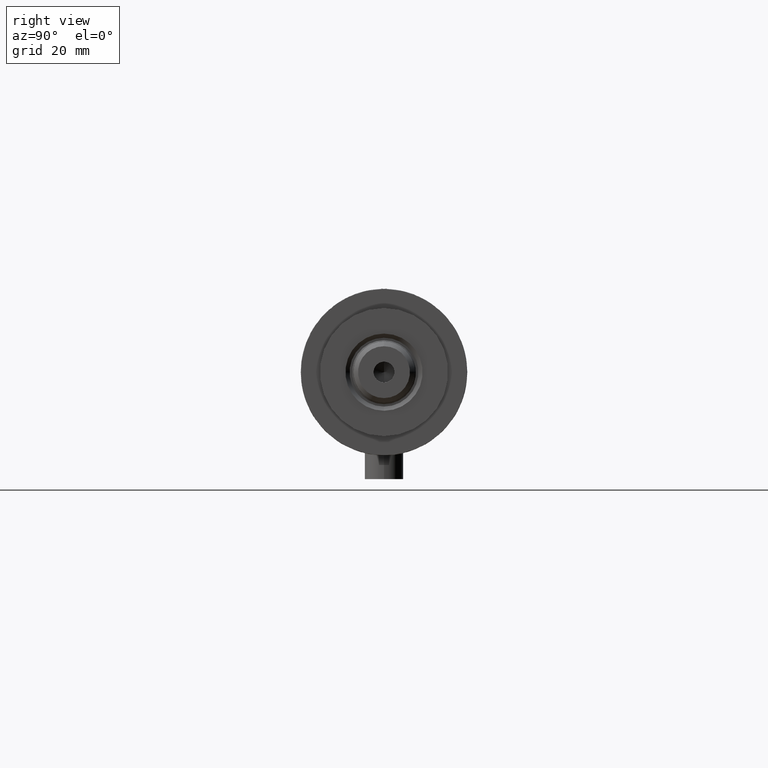
[diagram: clean part render]
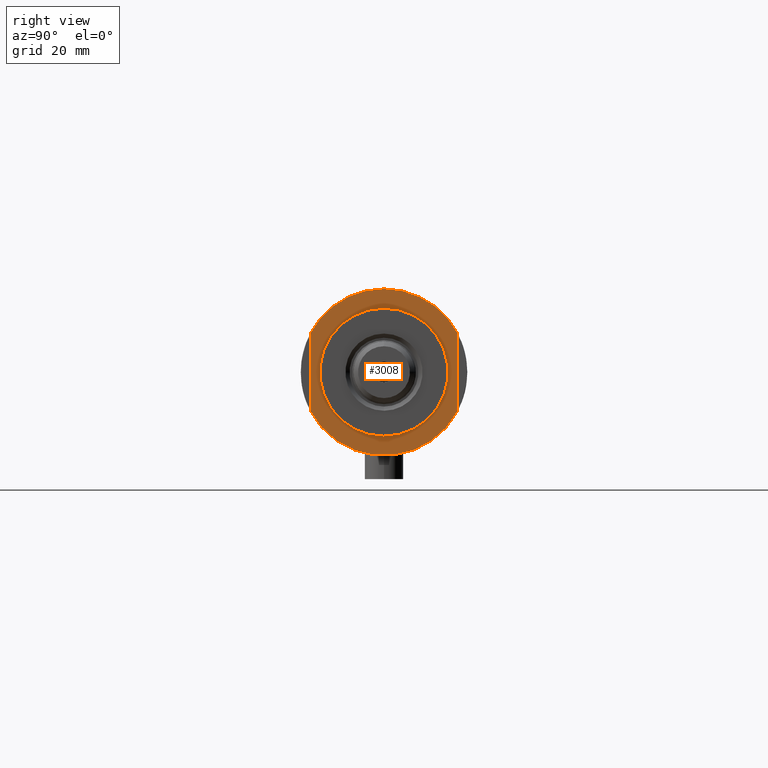
[diagram: same view with one face highlighted and labeled with its STEP entity id]
A machine part, right view. The second image highlights one B-rep face of the part: STEP entity #3008.
In plain terms, the highlighted planar face has unit normal (1, 0, -0).
Its self-contained STEP definition (entity closure, byte-faithful):
#30 = CARTESIAN_POINT ( 'NONE',  ( -12.12435565298215145, 23.00000000000000355, 15.50000000000000000 ) ) ;
#62 = LINE ( 'NONE', #838, #4287 ) ;
#64 = DIRECTION ( 'NONE',  ( 0.000000000000000000, 0.000000000000000000, 1.000000000000000000 ) ) ;
#107 = CARTESIAN_POINT ( 'NONE',  ( 0.000000000000000000, 0.000000000000000000, 15.50000000000000000 ) ) ;
#172 = DIRECTION ( 'NONE',  ( -0.000000000000000000, -0.000000000000000000, -1.000000000000000000 ) ) ;
#181 = ORIENTED_EDGE ( 'NONE', *, *, #4131, .T. ) ;
#384 = ORIENTED_EDGE ( 'NONE', *, *, #2624, .F. ) ;
#457 = CIRCLE ( 'NONE', #4080, 20.00000000000000000 ) ;
#583 = CARTESIAN_POINT ( 'NONE',  ( 12.12435565298215323, -22.99999999999999645, 15.50000000000000000 ) ) ;
#625 = AXIS2_PLACEMENT_3D ( 'NONE', #2944, #1359, #3728 ) ;
#759 = CIRCLE ( 'NONE', #1385, 26.00000000000000355 ) ;
#776 = CIRCLE ( 'NONE', #625, 26.00000000000000355 ) ;
#804 = EDGE_CURVE ( 'NONE', #1464, #4243, #2576, .T. ) ;
#838 = CARTESIAN_POINT ( 'NONE',  ( -12.12435565298215145, -22.99999999999999645, 15.50000000000000000 ) ) ;
#874 = CARTESIAN_POINT ( 'NONE',  ( -20.00000000000000000, 2.449293598294706513E-15, 15.50000000000000000 ) ) ;
#922 = EDGE_CURVE ( 'NONE', #2297, #1464, #759, .T. ) ;
#1026 = EDGE_CURVE ( 'NONE', #2297, #3625, #3407, .T. ) ;
#1068 = CIRCLE ( 'NONE', #1531, 20.00000000000000000 ) ;
#1189 = DIRECTION ( 'NONE',  ( -1.000000000000000000, -0.000000000000000000, -0.000000000000000000 ) ) ;
#1192 = VERTEX_POINT ( 'NONE', #874 ) ;
#1202 = ORIENTED_EDGE ( 'NONE', *, *, #1906, .T. ) ;
#1211 = DIRECTION ( 'NONE',  ( 1.000000000000000000, 0.000000000000000000, 0.000000000000000000 ) ) ;
#1271 = ORIENTED_EDGE ( 'NONE', *, *, #922, .T. ) ;
#1359 = DIRECTION ( 'NONE',  ( 0.000000000000000000, 0.000000000000000000, 1.000000000000000000 ) ) ;
#1385 = AXIS2_PLACEMENT_3D ( 'NONE', #4073, #4791, #3967 ) ;
#1464 = VERTEX_POINT ( 'NONE', #4858 ) ;
#1507 = ORIENTED_EDGE ( 'NONE', *, *, #1026, .F. ) ;
#1516 = DIRECTION ( 'NONE',  ( 1.000000000000000000, 0.000000000000000000, 0.000000000000000000 ) ) ;
#1531 = AXIS2_PLACEMENT_3D ( 'NONE', #4026, #172, #3185 ) ;
#1639 = DIRECTION ( 'NONE',  ( 1.000000000000000000, 0.000000000000000000, 0.000000000000000000 ) ) ;
#1895 = FACE_BOUND ( 'NONE', #3000, .T. ) ;
#1906 = EDGE_CURVE ( 'NONE', #3091, #1192, #1068, .T. ) ;
#1967 = ORIENTED_EDGE ( 'NONE', *, *, #804, .T. ) ;
#1989 = VECTOR ( 'NONE', #1516, 1000.000000000000000 ) ;
#2201 = VERTEX_POINT ( 'NONE', #583 ) ;
#2297 = VERTEX_POINT ( 'NONE', #4774 ) ;
#2576 = CIRCLE ( 'NONE', #3292, 26.00000000000000355 ) ;
#2624 = EDGE_CURVE ( 'NONE', #2201, #4243, #62, .T. ) ;
#2737 = CARTESIAN_POINT ( 'NONE',  ( 20.00000000000000000, 0.000000000000000000, 15.50000000000000000 ) ) ;
#2918 = FACE_OUTER_BOUND ( 'NONE', #3918, .T. ) ;
#2944 = CARTESIAN_POINT ( 'NONE',  ( 0.000000000000000000, 0.000000000000000000, 15.50000000000000000 ) ) ;
#2997 = DIRECTION ( 'NONE',  ( 1.000000000000000000, 0.000000000000000000, -0.000000000000000000 ) ) ;
#3000 = EDGE_LOOP ( 'NONE', ( #1202, #181 ) ) ;
#3008 = ADVANCED_FACE ( 'NONE', ( #1895, #2918 ), #4143, .T. ) ;
#3091 = VERTEX_POINT ( 'NONE', #2737 ) ;
#3119 = AXIS2_PLACEMENT_3D ( 'NONE', #4517, #3343, #2997 ) ;
#3185 = DIRECTION ( 'NONE',  ( 1.000000000000000000, 0.000000000000000000, 0.000000000000000000 ) ) ;
#3292 = AXIS2_PLACEMENT_3D ( 'NONE', #3416, #64, #1211 ) ;
#3343 = DIRECTION ( 'NONE',  ( 0.000000000000000000, 0.000000000000000000, 1.000000000000000000 ) ) ;
#3360 = ORIENTED_EDGE ( 'NONE', *, *, #4865, .T. ) ;
#3407 = LINE ( 'NONE', #30, #1989 ) ;
#3416 = CARTESIAN_POINT ( 'NONE',  ( 0.000000000000000000, 0.000000000000000000, 15.50000000000000000 ) ) ;
#3504 = DIRECTION ( 'NONE',  ( -0.000000000000000000, -0.000000000000000000, -1.000000000000000000 ) ) ;
#3613 = CARTESIAN_POINT ( 'NONE',  ( -12.12435565298215323, -22.99999999999999645, 15.50000000000000000 ) ) ;
#3625 = VERTEX_POINT ( 'NONE', #4676 ) ;
#3728 = DIRECTION ( 'NONE',  ( 1.000000000000000000, 0.000000000000000000, 0.000000000000000000 ) ) ;
#3918 = EDGE_LOOP ( 'NONE', ( #384, #3360, #1507, #1271, #1967 ) ) ;
#3967 = DIRECTION ( 'NONE',  ( 1.000000000000000000, 0.000000000000000000, 0.000000000000000000 ) ) ;
#4026 = CARTESIAN_POINT ( 'NONE',  ( 0.000000000000000000, 0.000000000000000000, 15.50000000000000000 ) ) ;
#4073 = CARTESIAN_POINT ( 'NONE',  ( 0.000000000000000000, 0.000000000000000000, 15.50000000000000000 ) ) ;
#4080 = AXIS2_PLACEMENT_3D ( 'NONE', #107, #3504, #1639 ) ;
#4131 = EDGE_CURVE ( 'NONE', #1192, #3091, #457, .T. ) ;
#4143 = PLANE ( 'NONE',  #3119 ) ;
#4243 = VERTEX_POINT ( 'NONE', #3613 ) ;
#4287 = VECTOR ( 'NONE', #1189, 1000.000000000000000 ) ;
#4517 = CARTESIAN_POINT ( 'NONE',  ( 0.000000000000000000, 0.000000000000000000, 15.50000000000000000 ) ) ;
#4676 = CARTESIAN_POINT ( 'NONE',  ( 12.12435565298214790, 23.00000000000000355, 15.50000000000000000 ) ) ;
#4774 = CARTESIAN_POINT ( 'NONE',  ( -12.12435565298214613, 23.00000000000000355, 15.50000000000000000 ) ) ;
#4791 = DIRECTION ( 'NONE',  ( 0.000000000000000000, 0.000000000000000000, 1.000000000000000000 ) ) ;
#4858 = CARTESIAN_POINT ( 'NONE',  ( -26.00000000000000355, 0.000000000000000000, 15.50000000000000000 ) ) ;
#4865 = EDGE_CURVE ( 'NONE', #2201, #3625, #776, .T. ) ;